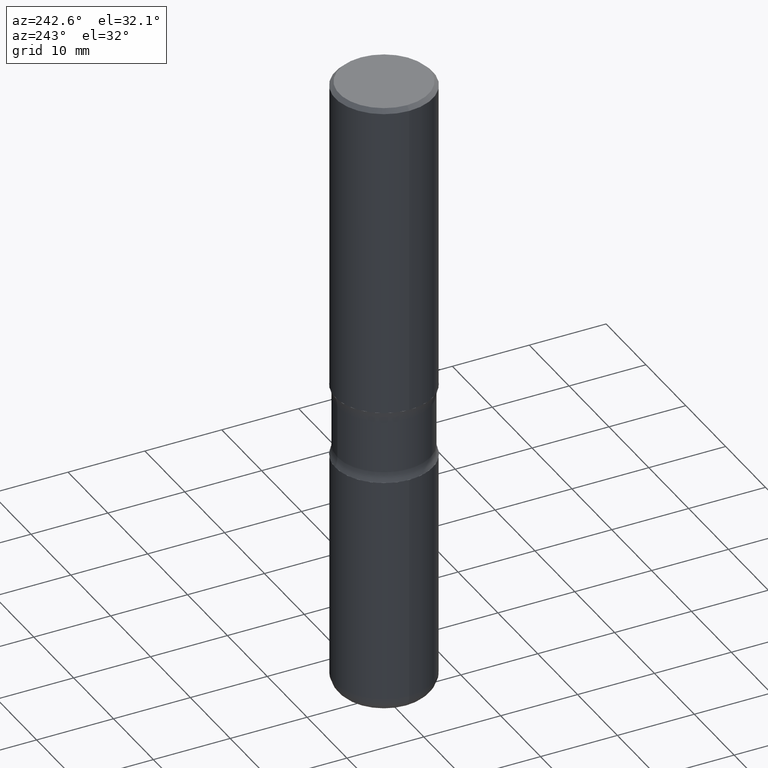
[diagram: clean part render]
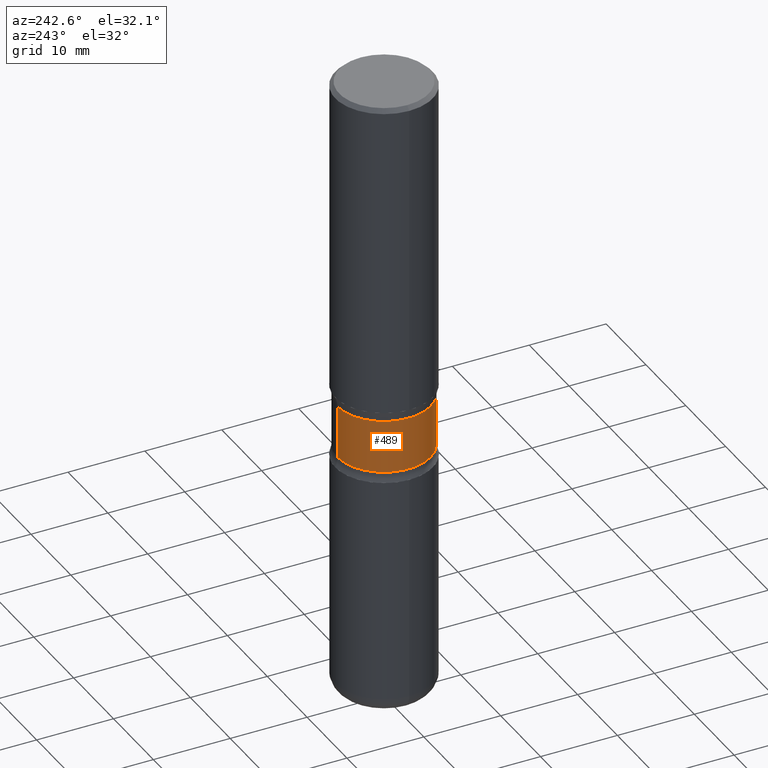
[diagram: same view with one face highlighted and labeled with its STEP entity id]
A machine part, auxiliary view. The second image highlights one B-rep face of the part: STEP entity #489.
In plain terms, the highlighted cylindrical surface (partial cylindrical patch) has radius 6.0706 mm, axis along (0, -0, -1).
Its self-contained STEP definition (entity closure, byte-faithful):
#5 = AXIS2_PLACEMENT_3D ( 'NONE', #192, #396, #486 ) ;
#14 = VERTEX_POINT ( 'NONE', #249 ) ;
#44 = CARTESIAN_POINT ( 'NONE',  ( 1.668928079967096646E-15, 0.2389999999999885827, -3.250000000000001332 ) ) ;
#47 = AXIS2_PLACEMENT_3D ( 'NONE', #548, #160, #301 ) ;
#53 = ORIENTED_EDGE ( 'NONE', *, *, #97, .T. ) ;
#78 = EDGE_CURVE ( 'NONE', #314, #303, #411, .T. ) ;
#92 = CARTESIAN_POINT ( 'NONE',  ( -1.639659021467319230E-15, -0.2390000000000117586, -3.249999999999999112 ) ) ;
#97 = EDGE_CURVE ( 'NONE', #154, #303, #499, .T. ) ;
#103 = CARTESIAN_POINT ( 'NONE',  ( 1.668928079967066866E-15, 0.2389999999999934122, -1.948726225026823355 ) ) ;
#129 = DIRECTION ( 'NONE',  ( 2.319831445618894347E-29, -3.671401190008483650E-15, -1.000000000000000000 ) ) ;
#137 = ORIENTED_EDGE ( 'NONE', *, *, #195, .F. ) ;
#154 = VERTEX_POINT ( 'NONE', #442 ) ;
#160 = DIRECTION ( 'NONE',  ( 2.319831445618894347E-29, -3.671401190008483650E-15, -1.000000000000000000 ) ) ;
#192 = CARTESIAN_POINT ( 'NONE',  ( 4.139947335781554076E-29, -5.794433829885863530E-15, -1.676273774973178199 ) ) ;
#195 = EDGE_CURVE ( 'NONE', #14, #314, #482, .T. ) ;
#221 = CYLINDRICAL_SURFACE ( 'NONE', #247, 0.2390000000000001568 ) ;
#225 = DIRECTION ( 'NONE',  ( 2.319831445618894347E-29, -3.671401190008483650E-15, -1.000000000000000000 ) ) ;
#247 = AXIS2_PLACEMENT_3D ( 'NONE', #380, #129, #386 ) ;
#249 = CARTESIAN_POINT ( 'NONE',  ( -1.677391760455100666E-15, -0.2390000000000059299, -1.676273774973177533 ) ) ;
#253 = ORIENTED_EDGE ( 'NONE', *, *, #78, .F. ) ;
#258 = EDGE_CURVE ( 'NONE', #14, #154, #428, .T. ) ;
#267 = ORIENTED_EDGE ( 'NONE', *, *, #258, .T. ) ;
#301 = DIRECTION ( 'NONE',  ( 6.982962677686265133E-15, 1.000000000000000000, -3.429097899996980271E-15 ) ) ;
#303 = VERTEX_POINT ( 'NONE', #103 ) ;
#307 = FACE_OUTER_BOUND ( 'NONE', #417, .T. ) ;
#314 = VERTEX_POINT ( 'NONE', #539 ) ;
#321 = VECTOR ( 'NONE', #225, 39.37007874015748143 ) ;
#369 = VECTOR ( 'NONE', #436, 39.37007874015748143 ) ;
#380 = CARTESIAN_POINT ( 'NONE',  ( 7.790726919393891548E-29, -1.157221416519689612E-14, -3.250000000000000000 ) ) ;
#386 = DIRECTION ( 'NONE',  ( 6.982962677686266711E-15, 1.000000000000000000, -4.572130533329308080E-15 ) ) ;
#396 = DIRECTION ( 'NONE',  ( 2.319831445618894347E-29, -3.671401190008483650E-15, -1.000000000000000000 ) ) ;
#411 = CIRCLE ( 'NONE', #47, 0.2390000000000002123 ) ;
#417 = EDGE_LOOP ( 'NONE', ( #137, #267, #53, #253 ) ) ;
#428 = CIRCLE ( 'NONE', #5, 0.2390000000000001290 ) ;
#436 = DIRECTION ( 'NONE',  ( 2.319831445618894347E-29, -3.671401190008483650E-15, -1.000000000000000000 ) ) ;
#442 = CARTESIAN_POINT ( 'NONE',  ( 1.668928079967059964E-15, 0.2389999999999943281, -1.676273774973179087 ) ) ;
#482 = LINE ( 'NONE', #92, #369 ) ;
#486 = DIRECTION ( 'NONE',  ( 6.982962677686265922E-15, 1.000000000000000000, -3.429097899996981454E-15 ) ) ;
#489 = ADVANCED_FACE ( 'NONE', ( #307 ), #221, .T. ) ;
#499 = LINE ( 'NONE', #44, #321 ) ;
#539 = CARTESIAN_POINT ( 'NONE',  ( -1.677391760455093961E-15, -0.2390000000000070401, -1.948726225026821579 ) ) ;
#548 = CARTESIAN_POINT ( 'NONE',  ( 4.771991096851908823E-29, -6.794716079233540390E-15, -1.948726225026822467 ) ) ;